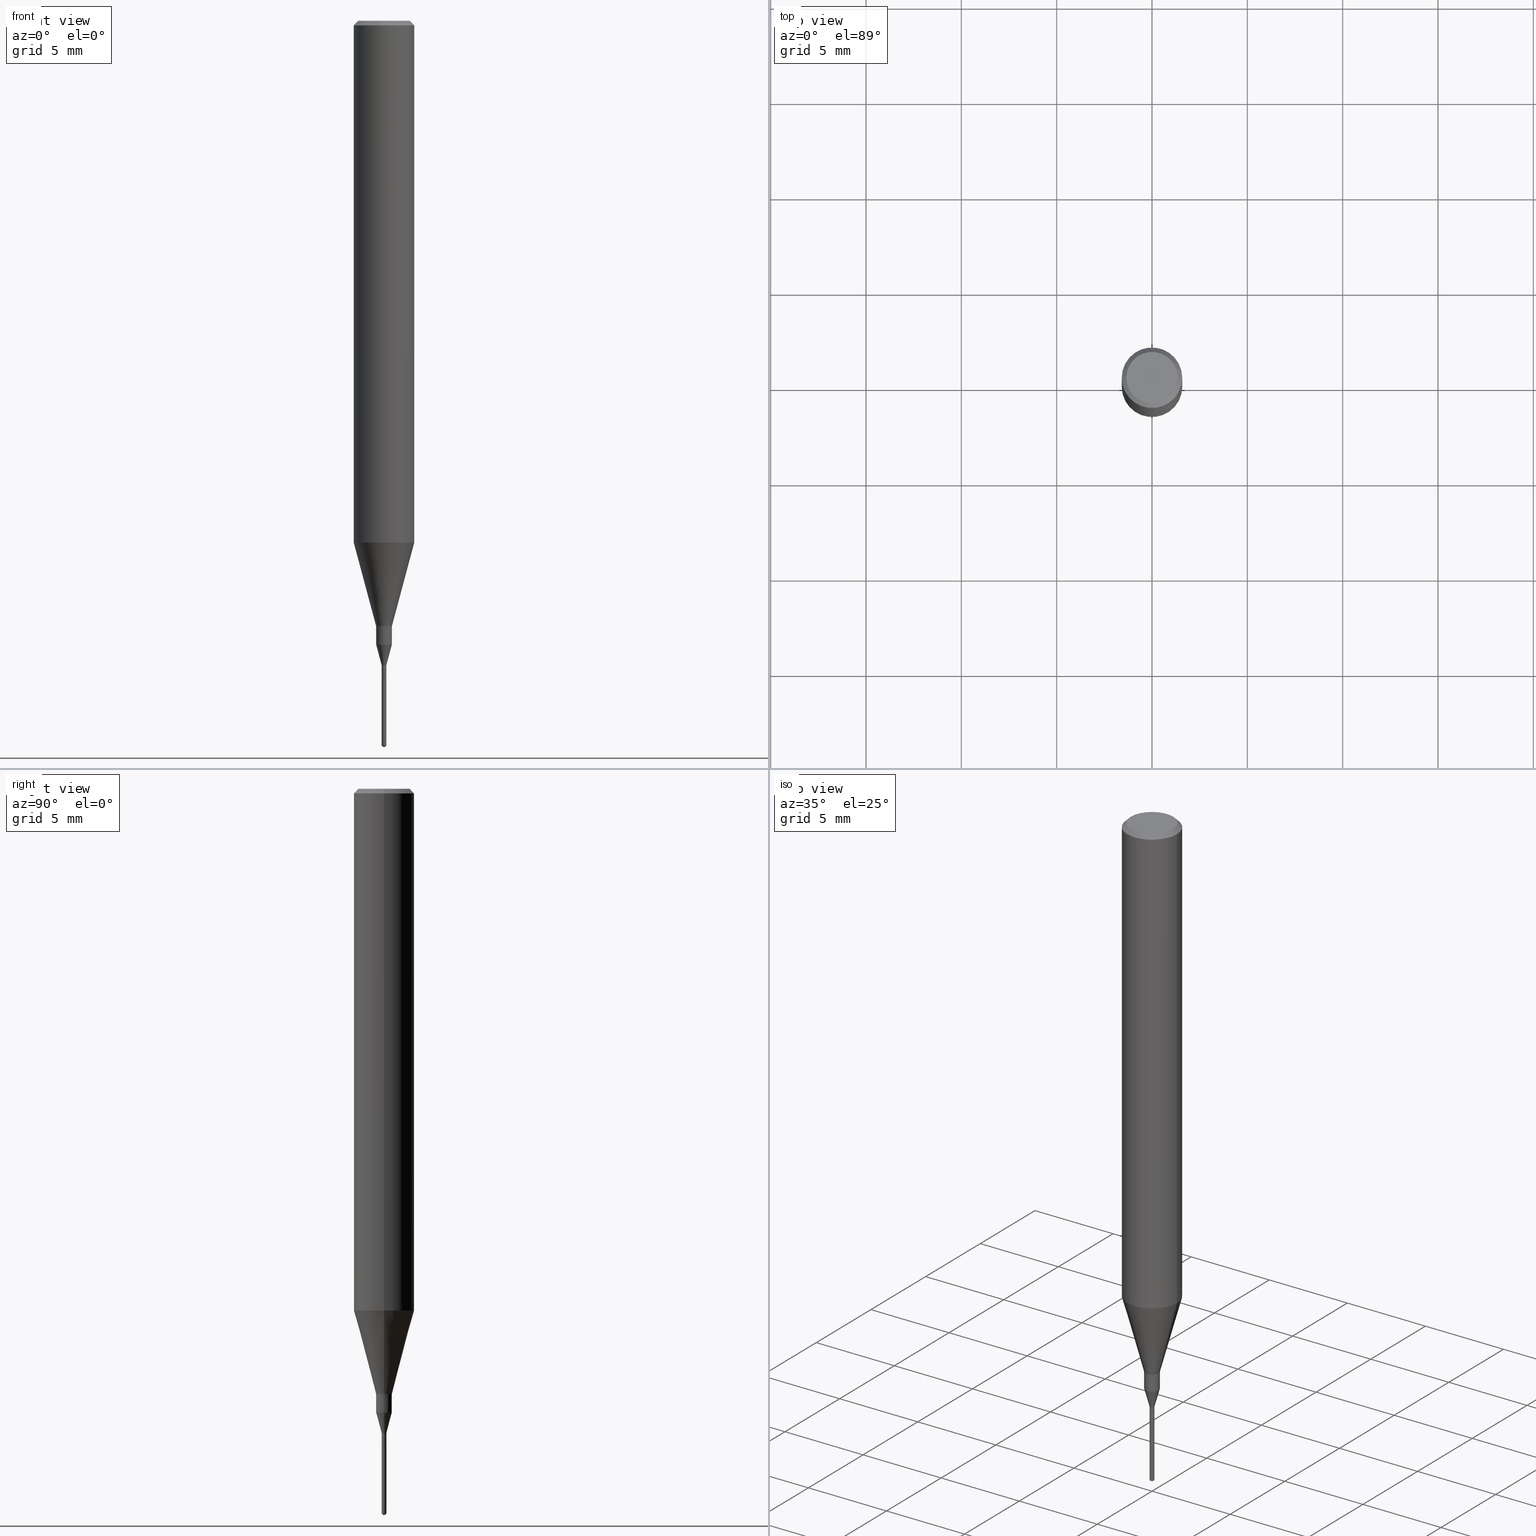
[diagram: canonical four-view strip — front | top / right | iso, engineering-drawing reading convention]
A machine part, canonical four-view strip (front | top / right | iso — engineering-drawing reading convention). The complete STEP part file that produces these views, byte-faithful:
ISO-10303-21;
HEADER;
FILE_DESCRIPTION (( 'STEP AP203' ),
    '1' );
FILE_NAME ('07108.STEP',
    '2024-04-19T13:30:03',
    ( '' ),
    ( '' ),
    'SwSTEP 2.0',
    'SolidWorks 2023',
    '' );
FILE_SCHEMA (( 'CONFIG_CONTROL_DESIGN' ));
ENDSEC;

DATA;
#1 = DIRECTION ( 'NONE',  ( -2.449828643397946418E-29, 3.485237803807878340E-15, 1.000000000000000000 ) ) ;
#2 = CARTESIAN_POINT ( 'NONE',  ( -0.004900000000000038873, 3.481659405224518532E-17, -2.410278194224922973E-31 ) ) ;
#3 = LINE ( 'NONE', #365, #521 ) ;
#4 =( GEOMETRIC_REPRESENTATION_CONTEXT ( 3 ) GLOBAL_UNCERTAINTY_ASSIGNED_CONTEXT ( ( #248 ) ) GLOBAL_UNIT_ASSIGNED_CONTEXT ( ( #324, #149, #186 ) ) REPRESENTATION_CONTEXT ( 'NONE', 'WORKASPACE' ) );
#5 = CARTESIAN_POINT ( 'NONE',  ( 0.05312499999999999861, -4.129888592719939842E-16, -5.787680772767651417E-18 ) ) ;
#6 = ORIENTED_EDGE ( 'NONE', *, *, #439, .T. ) ;
#7 = DIRECTION ( 'NONE',  ( 0.000000000000000000, 0.000000000000000000, 1.000000000000000000 ) ) ;
#8 = AXIS2_PLACEMENT_3D ( 'NONE', #318, #89, #540 ) ;
#9 = CONICAL_SURFACE ( 'NONE', #340, 0.06250000000000012490, 0.2617993877991501295 ) ;
#10 = DIRECTION ( 'NONE',  ( 1.000000000000000000, 0.000000000000000000, 0.000000000000000000 ) ) ;
#11 = EDGE_CURVE ( 'NONE', #392, #486, #62, .T. ) ;
#12 = EDGE_LOOP ( 'NONE', ( #348, #505, #412 ) ) ;
#13 = PERSON_AND_ORGANIZATION_ROLE ( 'design_owner' ) ;
#14 = AXIS2_PLACEMENT_3D ( 'NONE', #544, #500, #86 ) ;
#15 = CARTESIAN_POINT ( 'NONE',  ( 7.076796394983739835E-47, -1.010378970665454992E-32, -2.893840386385196200E-18 ) ) ;
#16 = DIRECTION ( 'NONE',  ( -2.445468806185136597E-29, 3.491481338843145583E-15, 1.000000000000000000 ) ) ;
#17 = PRODUCT_DEFINITION_SHAPE ( 'NONE', 'NONE',  #137 ) ;
#18 = DIRECTION ( 'NONE',  ( -2.445468806185136597E-29, 3.491481338843145583E-15, 1.000000000000000000 ) ) ;
#19 = CARTESIAN_POINT ( 'NONE',  ( 3.301382888349935078E-29, -4.713499807438246596E-15, -1.350000000000000089 ) ) ;
#20 = PERSON ( 'UNSPECIFIED', 'UNSPECIFIED', 'UNSPECIFIED', ('UNSPECIFIED'), ('UNSPECIFIED'), ('UNSPECIFIED') ) ;
#21 = DIRECTION ( 'NONE',  ( -2.445468806185136877E-29, 3.491481338843145188E-15, 1.000000000000000000 ) ) ;
#22 = DIRECTION ( 'NONE',  ( -2.445468806185136597E-29, 3.491481338843145583E-15, 1.000000000000000000 ) ) ;
#23 = ADVANCED_FACE ( 'NONE', ( #423 ), #379, .F. ) ;
#24 = AXIS2_PLACEMENT_3D ( 'NONE', #362, #99, #190 ) ;
#25 = DIRECTION ( 'NONE',  ( -2.449828643397946418E-29, 3.485237803807878340E-15, 1.000000000000000000 ) ) ;
#26 = ORIENTED_EDGE ( 'NONE', *, *, #316, .F. ) ;
#27 = DIRECTION ( 'NONE',  ( 1.000000000000000000, -6.982962677686288799E-15, 0.000000000000000000 ) ) ;
#28 = DATE_AND_TIME ( #587, #106 ) ;
#29 = CARTESIAN_POINT ( 'NONE',  ( 0.01625000000000000056, -4.610645038444085651E-15, -1.288041223334093432 ) ) ;
#30 = ORIENTED_EDGE ( 'NONE', *, *, #307, .T. ) ;
#31 = PERSON_AND_ORGANIZATION ( #20, #41 ) ;
#32 = LINE ( 'NONE', #481, #79 ) ;
#33 = ORIENTED_EDGE ( 'NONE', *, *, #542, .F. ) ;
#34 = DIRECTION ( 'NONE',  ( -2.445468806185136597E-29, 3.491481338843145583E-15, 1.000000000000000000 ) ) ;
#35 = ADVANCED_FACE ( 'NONE', ( #59 ), #515, .F. ) ;
#36 = ADVANCED_FACE ( 'NONE', ( #571 ), #69, .T. ) ;
#37 = ORIENTED_EDGE ( 'NONE', *, *, #416, .F. ) ;
#38 = AXIS2_PLACEMENT_3D ( 'NONE', #135, #507, #454 ) ;
#39 = VERTEX_POINT ( 'NONE', #568 ) ;
#40 = CARTESIAN_POINT ( 'NONE',  ( -0.01624999999999999709, 1.154631945610162595E-16, -7.993269521664220284E-31 ) ) ;
#41 = ORGANIZATION ( 'UNSPECIFIED', 'UNSPECIFIED', '' ) ;
#42 = APPROVAL_DATE_TIME ( #217, #525 ) ;
#43 = DIRECTION ( 'NONE',  ( 0.7071067811868232411, -2.468850131085145080E-15, 0.7071067811862716823 ) ) ;
#44 = CIRCLE ( 'NONE', #71, 0.004899999999999999842 ) ;
#45 = EDGE_CURVE ( 'NONE', #462, #153, #221, .T. ) ;
#46 = CARTESIAN_POINT ( 'NONE',  ( 3.662971404622334007E-29, -5.244714250307038079E-15, -1.500000000000000222 ) ) ;
#47 = AXIS2_PLACEMENT_3D ( 'NONE', #330, #564, #184 ) ;
#48 = DIRECTION ( 'NONE',  ( -5.985567269336014644E-15, -0.8571673007021206603, 0.5150380749100403888 ) ) ;
#49 = AXIS2_PLACEMENT_3D ( 'NONE', #562, #514, #464 ) ;
#50 = FACE_OUTER_BOUND ( 'NONE', #580, .T. ) ;
#51 = VECTOR ( 'NONE', #524, 39.37007874015748143 ) ;
#52 = ORIENTED_EDGE ( 'NONE', *, *, #475, .F. ) ;
#53 = LENGTH_MEASURE_WITH_UNIT ( LENGTH_MEASURE( 0.02539999999999999897 ), #107 );
#54 = EDGE_CURVE ( 'NONE', #486, #443, #268, .T. ) ;
#55 = CARTESIAN_POINT ( 'NONE',  ( -0.06250000000000012490, -3.317607122755211895E-15, -1.077392650149939346 ) ) ;
#56 = ADVANCED_FACE ( 'NONE', ( #479 ), #250, .T. ) ;
#57 = DIRECTION ( 'NONE',  ( -2.445468806185136877E-29, 3.491481338843145188E-15, 1.000000000000000000 ) ) ;
#58 = CARTESIAN_POINT ( 'NONE',  ( 0.06250000000000006939, -4.364351673553921624E-16, 3.047610484872463374E-30 ) ) ;
#59 = FACE_OUTER_BOUND ( 'NONE', #558, .T. ) ;
#60 = DIRECTION ( 'NONE',  ( 0.2588190451025214611, 1.565188264969621573E-15, 0.9659258262890682012 ) ) ;
#61 = DATE_AND_TIME ( #535, #271 ) ;
#62 = LINE ( 'NONE', #246, #104 ) ;
#63 = VECTOR ( 'NONE', #1, 39.37007874015748143 ) ;
#64 = DIRECTION ( 'NONE',  ( 1.000000000000000000, -6.982962677686267499E-15, 4.876176775795936353E-29 ) ) ;
#65 = LOCAL_TIME ( 9, 30, 3.000000000000000000, #82 ) ;
#66 = DIRECTION ( 'NONE',  ( 1.000000000000000000, -6.982962677686303787E-15, 0.000000000000000000 ) ) ;
#67 = PRODUCT_DEFINITION_FORMATION_WITH_SPECIFIED_SOURCE ( 'ANY', '', #382, .NOT_KNOWN. ) ;
#68 = VECTOR ( 'NONE', #335, 39.37007874015748143 ) ;
#69 = CYLINDRICAL_SURFACE ( 'NONE', #380, 0.004900000000000038873 ) ;
#70 = DIRECTION ( 'NONE',  ( 1.000000000000000000, -6.982962677686258033E-15, 0.000000000000000000 ) ) ;
#71 = AXIS2_PLACEMENT_3D ( 'NONE', #355, #455, #232 ) ;
#72 = DIRECTION ( 'NONE',  ( -2.445468806185136597E-29, 3.491481338843145583E-15, 1.000000000000000000 ) ) ;
#73 = VERTEX_POINT ( 'NONE', #483 ) ;
#74 = CALENDAR_DATE ( 2024, 19, 4 ) ;
#75 = AXIS2_PLACEMENT_3D ( 'NONE', #563, #151, #469 ) ;
#76 = DIRECTION ( 'NONE',  ( -2.445468806185136597E-29, 3.491481338843145583E-15, 1.000000000000000000 ) ) ;
#77 = CC_DESIGN_PERSON_AND_ORGANIZATION_ASSIGNMENT ( #31, #393, ( #137 ) ) ;
#78 = DIRECTION ( 'NONE',  ( 1.000000000000000000, -6.982962677686266711E-15, 4.876176775795935793E-29 ) ) ;
#79 = VECTOR ( 'NONE', #249, 39.37007874015748143 ) ;
#80 = ORIENTED_EDGE ( 'NONE', *, *, #98, .F. ) ;
#81 = ORIENTED_EDGE ( 'NONE', *, *, #363, .T. ) ;
#82 = COORDINATED_UNIVERSAL_TIME_OFFSET ( 5, 0, .BEHIND. ) ;
#83 = ORIENTED_EDGE ( 'NONE', *, *, #309, .F. ) ;
#84 = EDGE_LOOP ( 'NONE', ( #81, #165 ) ) ;
#85 = CARTESIAN_POINT ( 'NONE',  ( 2.634730117954813298E-29, -3.761696332605275695E-15, -1.077392650149939346 ) ) ;
#86 = DIRECTION ( 'NONE',  ( 1.000000000000000000, -6.982962677686266711E-15, 4.876176775795935793E-29 ) ) ;
#87 = ADVANCED_FACE ( 'NONE', ( #108 ), #252, .T. ) ;
#88 = DIRECTION ( 'NONE',  ( -2.445468806185136877E-29, 3.491481338843145188E-15, 1.000000000000000000 ) ) ;
#89 = DIRECTION ( 'NONE',  ( -2.445468806185136597E-29, 3.491481338843145583E-15, 1.000000000000000000 ) ) ;
#90 = ORIENTED_EDGE ( 'NONE', *, *, #148, .T. ) ;
#91 = EDGE_LOOP ( 'NONE', ( #33, #447, #311, #26 ) ) ;
#92 = CARTESIAN_POINT ( 'NONE',  ( 0.01624999999999999709, -4.477824817066334148E-15, -1.250000000000000000 ) ) ;
#93 = CARTESIAN_POINT ( 'NONE',  ( 0.004399999999999999398, -4.744224843220065847E-15, -1.350000000000000089 ) ) ;
#94 = VECTOR ( 'NONE', #60, 39.37007874015747433 ) ;
#95 = ORIENTED_EDGE ( 'NONE', *, *, #373, .F. ) ;
#96 = ORIENTED_EDGE ( 'NONE', *, *, #416, .T. ) ;
#97 = APPROVAL_PERSON_ORGANIZATION ( #325, #266, #378 ) ;
#98 = EDGE_CURVE ( 'NONE', #153, #445, #430, .T. ) ;
#99 = DIRECTION ( 'NONE',  ( -2.445468806185136597E-29, 3.491481338843145583E-15, 1.000000000000000000 ) ) ;
#100 = ADVANCED_FACE ( 'NONE', ( #388 ), #449, .T. ) ;
#101 = ORIENTED_EDGE ( 'NONE', *, *, #141, .F. ) ;
#102 = MANIFOLD_SOLID_BREP ( 'Body-Move/Copy2[1]', #351 ) ;
#103 = DIRECTION ( 'NONE',  ( -2.445468806185136597E-29, 3.491481338843145583E-15, 1.000000000000000000 ) ) ;
#104 = VECTOR ( 'NONE', #21, 39.37007874015748143 ) ;
#105 = EDGE_CURVE ( 'NONE', #153, #462, #513, .T. ) ;
#106 = LOCAL_TIME ( 9, 30, 3.000000000000000000, #345 ) ;
#107 =( LENGTH_UNIT ( ) NAMED_UNIT ( * ) SI_UNIT ( $, .METRE. ) );
#108 = FACE_OUTER_BOUND ( 'NONE', #554, .T. ) ;
#109 = VECTOR ( 'NONE', #350, 39.37007874015748143 ) ;
#110 = CIRCLE ( 'NONE', #386, 0.06250000000000012490 ) ;
#111 = ORIENTED_EDGE ( 'NONE', *, *, #414, .F. ) ;
#112 = CARTESIAN_POINT ( 'NONE',  ( 2.292627005798580186E-31, -3.273263755165470184E-17, -0.009375000000000060368 ) ) ;
#113 = CARTESIAN_POINT ( 'NONE',  ( -9.278108940561071411E-28, 1.319778012860802633E-13, 37.87007874015748143 ) ) ;
#114 = DIRECTION ( 'NONE',  ( 1.000000000000000000, -6.982962677686266711E-15, 0.000000000000000000 ) ) ;
#115 = DIRECTION ( 'NONE',  ( -2.445468806185136597E-29, 3.491481338843145583E-15, 1.000000000000000000 ) ) ;
#116 = ADVANCED_FACE ( 'NONE', ( #337 ), #140, .T. ) ;
#117 = DESIGN_CONTEXT ( 'detailed design', #344, 'design' ) ;
#118 = LINE ( 'NONE', #537, #51 ) ;
#119 = VERTEX_POINT ( 'NONE', #228 ) ;
#120 = COORDINATED_UNIVERSAL_TIME_OFFSET ( 5, 0, .BEHIND. ) ;
#121 = CC_DESIGN_DATE_AND_TIME_ASSIGNMENT ( #61, #490, ( #329 ) ) ;
#122 = LINE ( 'NONE', #197, #109 ) ;
#123 = ORIENTED_EDGE ( 'NONE', *, *, #414, .T. ) ;
#124 = AXIS2_PLACEMENT_3D ( 'NONE', #333, #196, #520 ) ;
#125 = EDGE_LOOP ( 'NONE', ( #493, #354, #583, #264 ) ) ;
#126 = DIRECTION ( 'NONE',  ( 1.000000000000000000, -6.982962677686289588E-15, 0.000000000000000000 ) ) ;
#127 = VERTEX_POINT ( 'NONE', #456 ) ;
#128 = CARTESIAN_POINT ( 'NONE',  ( 2.634730117954813298E-29, -3.761696332605275695E-15, -1.077392650149939346 ) ) ;
#129 = EDGE_LOOP ( 'NONE', ( #90, #532, #463, #101 ) ) ;
#130 = DIRECTION ( 'NONE',  ( 1.000000000000000000, -6.982962677686258033E-15, 0.000000000000000000 ) ) ;
#131 = ADVANCED_FACE ( 'NONE', ( #543 ), #231, .T. ) ;
#132 = CARTESIAN_POINT ( 'NONE',  ( 0.01625000000000000056, -4.610645038444085651E-15, -1.288041223334093432 ) ) ;
#133 = AXIS2_PLACEMENT_3D ( 'NONE', #175, #497, #360 ) ;
#134 = FACE_OUTER_BOUND ( 'NONE', #349, .T. ) ;
#135 = CARTESIAN_POINT ( 'NONE',  ( 3.661644357639227477E-29, -5.226024181502583306E-15, -1.497055782966765225 ) ) ;
#136 = FACE_OUTER_BOUND ( 'NONE', #538, .T. ) ;
#137 = PRODUCT_DEFINITION ( 'UNKNOWN', '', #67, #117 ) ;
#138 = ORIENTED_EDGE ( 'NONE', *, *, #200, .T. ) ;
#139 = DIRECTION ( 'NONE',  ( 1.000000000000000000, -6.982962677686266711E-15, 4.876176775795935793E-29 ) ) ;
#140 = CONICAL_SURFACE ( 'NONE', #556, 0.06250000000000000000, 0.7853981633974456145 ) ;
#141 = EDGE_CURVE ( 'NONE', #498, #279, #552, .T. ) ;
#142 = ORIENTED_EDGE ( 'NONE', *, *, #567, .F. ) ;
#143 = LINE ( 'NONE', #55, #187 ) ;
#144 = DIRECTION ( 'NONE',  ( -2.445468806185136597E-29, 3.491481338843145583E-15, 1.000000000000000000 ) ) ;
#145 = VECTOR ( 'NONE', #522, 39.37007874015748854 ) ;
#146 = VECTOR ( 'NONE', #270, 39.37007874015748143 ) ;
#147 = APPLICATION_PROTOCOL_DEFINITION ( 'international standard', 'config_control_design', 1994, #212 ) ;
#148 = EDGE_CURVE ( 'NONE', #498, #459, #292, .T. ) ;
#149 =( NAMED_UNIT ( * ) PLANE_ANGLE_UNIT ( ) SI_UNIT ( $, .RADIAN. ) );
#150 = AXIS2_PLACEMENT_3D ( 'NONE', #201, #243, #64 ) ;
#151 = DIRECTION ( 'NONE',  ( 2.449828643397946138E-29, -3.485237803807878340E-15, -1.000000000000000000 ) ) ;
#152 = CARTESIAN_POINT ( 'NONE',  ( 0.000000000000000000, 0.000000000000000000, 0.000000000000000000 ) ) ;
#153 = VERTEX_POINT ( 'NONE', #92 ) ;
#154 = CIRCLE ( 'NONE', #494, 0.01625000000000000056 ) ;
#155 = DIRECTION ( 'NONE',  ( -2.445468806185136597E-29, 3.491481338843145583E-15, 1.000000000000000000 ) ) ;
#156 = CC_DESIGN_DATE_AND_TIME_ASSIGNMENT ( #28, #287, ( #137 ) ) ;
#157 = DIRECTION ( 'NONE',  ( -1.000000000000000000, 6.982962677686265922E-15, -4.876176775795935793E-29 ) ) ;
#158 = FACE_OUTER_BOUND ( 'NONE', #12, .T. ) ;
#159 = EDGE_CURVE ( 'NONE', #368, #459, #410, .T. ) ;
#160 = LINE ( 'NONE', #391, #145 ) ;
#161 = ORIENTED_EDGE ( 'NONE', *, *, #45, .F. ) ;
#162 = PERSON_AND_ORGANIZATION ( #20, #41 ) ;
#163 = CARTESIAN_POINT ( 'NONE',  ( 2.292627005798580186E-31, -3.273263755165470184E-17, -0.009375000000000060368 ) ) ;
#164 = EDGE_CURVE ( 'NONE', #462, #392, #143, .T. ) ;
#165 = ORIENTED_EDGE ( 'NONE', *, *, #567, .T. ) ;
#166 = ORIENTED_EDGE ( 'NONE', *, *, #519, .F. ) ;
#167 = VERTEX_POINT ( 'NONE', #178 ) ;
#168 = ORIENTED_EDGE ( 'NONE', *, *, #239, .F. ) ;
#169 = DIRECTION ( 'NONE',  ( 0.7071067811865454633, -7.319954787623246579E-15, -0.7071067811865493491 ) ) ;
#170 = ORIENTED_EDGE ( 'NONE', *, *, #529, .F. ) ;
#171 = DIRECTION ( 'NONE',  ( -2.445468806185136597E-29, 3.491481338843145583E-15, 1.000000000000000000 ) ) ;
#172 = ORIENTED_EDGE ( 'NONE', *, *, #225, .T. ) ;
#173 = EDGE_LOOP ( 'NONE', ( #37, #30, #6, #575 ) ) ;
#174 = ORIENTED_EDGE ( 'NONE', *, *, #373, .T. ) ;
#175 = CARTESIAN_POINT ( 'NONE',  ( 3.149864632744068041E-29, -4.497171894931683975E-15, -1.288041223334093432 ) ) ;
#176 = SHAPE_DEFINITION_REPRESENTATION ( #17, #211 ) ;
#177 = DIRECTION ( 'NONE',  ( 1.000000000000000000, -6.982962677686264344E-15, 0.000000000000000000 ) ) ;
#178 = CARTESIAN_POINT ( 'NONE',  ( 0.004399999999999999398, -4.744224843220065847E-15, -1.350000000000000089 ) ) ;
#179 = CARTESIAN_POINT ( 'NONE',  ( 0.06250000000000012490, -4.198131499960668153E-15, -1.077392650149939346 ) ) ;
#180 = DIRECTION ( 'NONE',  ( 6.090539988449850222E-15, 0.8571673007021241020, 0.5150380749100342825 ) ) ;
#181 = LINE ( 'NONE', #2, #146 ) ;
#182 = ADVANCED_FACE ( 'NONE', ( #261 ), #574, .T. ) ;
#183 = ORIENTED_EDGE ( 'NONE', *, *, #475, .T. ) ;
#184 = DIRECTION ( 'NONE',  ( 1.000000000000000000, -6.982962677686266711E-15, 4.875930095424100059E-29 ) ) ;
#185 = ORIENTED_EDGE ( 'NONE', *, *, #105, .F. ) ;
#186 =( NAMED_UNIT ( * ) SI_UNIT ( $, .STERADIAN. ) SOLID_ANGLE_UNIT ( ) );
#187 = VECTOR ( 'NONE', #541, 39.37007874015747433 ) ;
#188 = LOCAL_TIME ( 9, 30, 3.000000000000000000, #438 ) ;
#189 = EDGE_CURVE ( 'NONE', #400, #153, #32, .T. ) ;
#190 = DIRECTION ( 'NONE',  ( 1.000000000000000000, -6.982962677686289588E-15, 0.000000000000000000 ) ) ;
#191 = AXIS2_PLACEMENT_3D ( 'NONE', #202, #76, #436 ) ;
#192 = ORIENTED_EDGE ( 'NONE', *, *, #526, .T. ) ;
#193 = CONICAL_SURFACE ( 'NONE', #298, 0.01625000000000000056, 0.2617993877991485197 ) ;
#194 = APPROVAL_STATUS ( 'not_yet_approved' ) ;
#195 = ORIENTED_EDGE ( 'NONE', *, *, #198, .F. ) ;
#196 = DIRECTION ( 'NONE',  ( -2.445468806185136597E-29, 3.491481338843145583E-15, 1.000000000000000000 ) ) ;
#197 = CARTESIAN_POINT ( 'NONE',  ( -0.01625000000000000056, -4.381708700370667790E-15, -1.288041223334093432 ) ) ;
#198 = EDGE_CURVE ( 'NONE', #395, #443, #339, .T. ) ;
#199 = AXIS2_PLACEMENT_3D ( 'NONE', #19, #22, #126 ) ;
#200 = EDGE_CURVE ( 'NONE', #347, #496, #122, .T. ) ;
#201 = CARTESIAN_POINT ( 'NONE',  ( 0.000000000000000000, 0.000000000000000000, 0.000000000000000000 ) ) ;
#202 = CARTESIAN_POINT ( 'NONE',  ( 0.000000000000000000, 0.000000000000000000, 0.000000000000000000 ) ) ;
#203 = DIRECTION ( 'NONE',  ( -2.449828643397946418E-29, 3.485237803807878340E-15, 1.000000000000000000 ) ) ;
#204 = CARTESIAN_POINT ( 'NONE',  ( 3.300160153946842837E-29, -4.711754066768825881E-15, -1.349500000000000366 ) ) ;
#205 = ORIENTED_EDGE ( 'NONE', *, *, #530, .T. ) ;
#206 = CARTESIAN_POINT ( 'NONE',  ( 2.292627005798580186E-31, -3.273263755165470184E-17, -0.009375000000000060368 ) ) ;
#207 = PERSON_AND_ORGANIZATION ( #20, #41 ) ;
#208 = EDGE_CURVE ( 'NONE', #443, #486, #442, .T. ) ;
#209 = CARTESIAN_POINT ( 'NONE',  ( -0.004900000000000062292, -4.643593825930628961E-15, -1.330400000000000027 ) ) ;
#210 = PERSON_AND_ORGANIZATION_ROLE ( 'creator' ) ;
#211 = ADVANCED_BREP_SHAPE_REPRESENTATION ( '07108', ( #102, #293, #477 ), #4 ) ;
#212 = APPLICATION_CONTEXT ( 'configuration controlled 3d designs of mechanical parts and assemblies' ) ;
#213 = ORIENTED_EDGE ( 'NONE', *, *, #307, .F. ) ;
#214 = EDGE_LOOP ( 'NONE', ( #172, #357, #185, #305 ) ) ;
#215 = CARTESIAN_POINT ( 'NONE',  ( 3.253451699748706005E-29, -4.645066773196920500E-15, -1.330400000000000027 ) ) ;
#216 = CC_DESIGN_PERSON_AND_ORGANIZATION_ASSIGNMENT ( #450, #531, ( #67 ) ) ;
#217 = DATE_AND_TIME ( #401, #374 ) ;
#218 = DIRECTION ( 'NONE',  ( 1.000000000000000000, -6.982962677686266711E-15, 4.875930095424100059E-29 ) ) ;
#219 = ORIENTED_EDGE ( 'NONE', *, *, #244, .T. ) ;
#220 = APPROVAL_ROLE ( '' ) ;
#221 = CIRCLE ( 'NONE', #124, 0.01624999999999999709 ) ;
#222 = EDGE_LOOP ( 'NONE', ( #219, #205, #262, #356 ) ) ;
#223 = FACE_OUTER_BOUND ( 'NONE', #536, .T. ) ;
#224 = PERSON_AND_ORGANIZATION ( #20, #41 ) ;
#225 = EDGE_CURVE ( 'NONE', #400, #496, #154, .T. ) ;
#226 = CARTESIAN_POINT ( 'NONE',  ( -0.01624999999999999709, -4.315298589681791643E-15, -1.250000000000000000 ) ) ;
#227 = AXIS2_PLACEMENT_3D ( 'NONE', #504, #503, #411 ) ;
#228 = CARTESIAN_POINT ( 'NONE',  ( 3.481659405228152839E-17, 0.004899999999995285731, -1.350000000000000089 ) ) ;
#229 = LINE ( 'NONE', #46, #272 ) ;
#230 = CLOSED_SHELL ( 'NONE', ( #116, #182, #461, #56, #422, #523, #328, #589, #100, #36, #353, #275, #466, #550, #586, #35 ) ) ;
#231 = CYLINDRICAL_SURFACE ( 'NONE', #473, 0.004899999999999998107 ) ;
#232 = DIRECTION ( 'NONE',  ( -6.982962677686265922E-15, -1.000000000000000000, 0.000000000000000000 ) ) ;
#233 = AXIS2_PLACEMENT_3D ( 'NONE', #322, #144, #377 ) ;
#234 = AXIS2_PLACEMENT_3D ( 'NONE', #204, #155, #251 ) ;
#235 = MECHANICAL_CONTEXT ( 'NONE', #212, 'mechanical' ) ;
#236 = CIRCLE ( 'NONE', #199, 0.004399999999999999398 ) ;
#237 = ORIENTED_EDGE ( 'NONE', *, *, #159, .F. ) ;
#238 = FACE_OUTER_BOUND ( 'NONE', #332, .T. ) ;
#239 = EDGE_CURVE ( 'NONE', #459, #119, #118, .T. ) ;
#240 = AXIS2_PLACEMENT_3D ( 'NONE', #396, #302, #78 ) ;
#241 = CARTESIAN_POINT ( 'NONE',  ( 3.301382888349935078E-29, -4.713499807438246596E-15, -1.350000000000000089 ) ) ;
#242 = COORDINATED_UNIVERSAL_TIME_OFFSET ( 5, 0, .BEHIND. ) ;
#243 = DIRECTION ( 'NONE',  ( -2.445468806185136597E-29, 3.491481338843145583E-15, 1.000000000000000000 ) ) ;
#244 = EDGE_CURVE ( 'NONE', #167, #313, #236, .T. ) ;
#245 = AXIS2_PLACEMENT_3D ( 'NONE', #434, #573, #289 ) ;
#246 = CARTESIAN_POINT ( 'NONE',  ( -0.06250000000000006939, 4.440892098500631092E-16, -3.074334431409319267E-30 ) ) ;
#247 = EDGE_CURVE ( 'NONE', #347, #127, #569, .T. ) ;
#248 = UNCERTAINTY_MEASURE_WITH_UNIT (LENGTH_MEASURE( 1.000000000000000082E-05 ), #324, 'distance_accuracy_value', 'NONE');
#249 = DIRECTION ( 'NONE',  ( -2.445468806185136877E-29, 3.491481338843145188E-15, 1.000000000000000000 ) ) ;
#250 = CYLINDRICAL_SURFACE ( 'NONE', #150, 0.01624999999999999709 ) ;
#251 = DIRECTION ( 'NONE',  ( 1.000000000000000000, -6.982962677686172047E-15, 0.000000000000000000 ) ) ;
#252 = CYLINDRICAL_SURFACE ( 'NONE', #278, 0.004899999999999998107 ) ;
#253 = DIRECTION ( 'NONE',  ( 1.000000000000000000, -6.982962677686289588E-15, 0.000000000000000000 ) ) ;
#254 = ORIENTED_EDGE ( 'NONE', *, *, #519, .T. ) ;
#255 = DATE_AND_TIME ( #306, #65 ) ;
#256 = ORIENTED_EDGE ( 'NONE', *, *, #526, .F. ) ;
#257 = CIRCLE ( 'NONE', #418, 0.004899999999999999842 ) ;
#258 = EDGE_LOOP ( 'NONE', ( #415, #192, #581, #213 ) ) ;
#259 = DIRECTION ( 'NONE',  ( 1.000000000000000000, -6.982962677686266711E-15, 0.000000000000000000 ) ) ;
#260 = EDGE_LOOP ( 'NONE', ( #506, #256 ) ) ;
#261 = FACE_OUTER_BOUND ( 'NONE', #491, .T. ) ;
#262 = ORIENTED_EDGE ( 'NONE', *, *, #545, .F. ) ;
#263 = CONICAL_SURFACE ( 'NONE', #8, 0.06250000000000012490, 0.2617993877991501295 ) ;
#264 = ORIENTED_EDGE ( 'NONE', *, *, #431, .F. ) ;
#265 = CARTESIAN_POINT ( 'NONE',  ( -0.06250000000000000000, -1.453125275228401137E-15, -0.009375000000000060368 ) ) ;
#266 = APPROVAL ( #194, 'UNSPECIFIED' ) ;
#267 = CIRCLE ( 'NONE', #417, 0.05312499999999999861 ) ;
#268 = CIRCLE ( 'NONE', #341, 0.06250000000000000000 ) ;
#269 = EDGE_CURVE ( 'NONE', #459, #498, #428, .T. ) ;
#270 = DIRECTION ( 'NONE',  ( -2.445468806185136877E-29, 3.491481338843145188E-15, 1.000000000000000000 ) ) ;
#271 = LOCAL_TIME ( 9, 30, 3.000000000000000000, #120 ) ;
#272 = VECTOR ( 'NONE', #48, 39.37007874015748143 ) ;
#273 = DIRECTION ( 'NONE',  ( -2.449828643397946418E-29, 3.485237803807878340E-15, 1.000000000000000000 ) ) ;
#274 = DIRECTION ( 'NONE',  ( -2.445468806185136597E-29, 3.491481338843145583E-15, 1.000000000000000000 ) ) ;
#275 = ADVANCED_FACE ( 'NONE', ( #488 ), #492, .T. ) ;
#276 = DIRECTION ( 'NONE',  ( 1.000000000000000000, -6.982962677686258033E-15, 0.000000000000000000 ) ) ;
#277 = ORIENTED_EDGE ( 'NONE', *, *, #189, .T. ) ;
#278 = AXIS2_PLACEMENT_3D ( 'NONE', #286, #203, #518 ) ;
#279 = VERTEX_POINT ( 'NONE', #570 ) ;
#280 = CYLINDRICAL_SURFACE ( 'NONE', #502, 0.06250000000000006939 ) ;
#281 = AXIS2_PLACEMENT_3D ( 'NONE', #215, #115, #66 ) ;
#282 = VECTOR ( 'NONE', #465, 39.37007874015748854 ) ;
#283 = FACE_OUTER_BOUND ( 'NONE', #260, .T. ) ;
#284 = VECTOR ( 'NONE', #57, 39.37007874015748143 ) ;
#285 = VECTOR ( 'NONE', #169, 39.37007874015748854 ) ;
#286 = CARTESIAN_POINT ( 'NONE',  ( 3.301382888349935078E-29, -4.713499807438246596E-15, -1.350000000000000089 ) ) ;
#287 = DATE_TIME_ROLE ( 'creation_date' ) ;
#288 = ORIENTED_EDGE ( 'NONE', *, *, #542, .T. ) ;
#289 = DIRECTION ( 'NONE',  ( 1.000000000000000000, -6.982962677686289588E-15, 0.000000000000000000 ) ) ;
#290 = CARTESIAN_POINT ( 'NONE',  ( 0.000000000000000000, 0.000000000000000000, 0.000000000000000000 ) ) ;
#291 = DIRECTION ( 'NONE',  ( -2.449828643397946418E-29, 3.485237803807878340E-15, 1.000000000000000000 ) ) ;
#292 = CIRCLE ( 'NONE', #38, 0.004899999999999998107 ) ;
#293 = MANIFOLD_SOLID_BREP ( 'Body-Move/Copy2[2]', #230 ) ;
#294 = CIRCLE ( 'NONE', #233, 0.004900000000000015454 ) ;
#295 = VECTOR ( 'NONE', #452, 39.37007874015748143 ) ;
#296 = DIRECTION ( 'NONE',  ( -2.445468806185136597E-29, 3.491481338843145583E-15, 1.000000000000000000 ) ) ;
#297 = AXIS2_PLACEMENT_3D ( 'NONE', #113, #291, #387 ) ;
#298 = AXIS2_PLACEMENT_3D ( 'NONE', #533, #274, #130 ) ;
#299 = CARTESIAN_POINT ( 'NONE',  ( -0.004399999999999999398, -4.679586699890691274E-15, -1.350000000000000089 ) ) ;
#300 = APPROVAL_DATE_TIME ( #255, #460 ) ;
#301 = ORIENTED_EDGE ( 'NONE', *, *, #54, .T. ) ;
#302 = DIRECTION ( 'NONE',  ( -2.445468806185136597E-29, 3.491481338843145583E-15, 1.000000000000000000 ) ) ;
#303 = VERTEX_POINT ( 'NONE', #528 ) ;
#304 = DIRECTION ( 'NONE',  ( -6.982962677686265922E-15, -1.000000000000000000, 0.000000000000000000 ) ) ;
#305 = ORIENTED_EDGE ( 'NONE', *, *, #189, .F. ) ;
#306 = CALENDAR_DATE ( 2024, 19, 4 ) ;
#307 = EDGE_CURVE ( 'NONE', #73, #39, #331, .T. ) ;
#308 = DIRECTION ( 'NONE',  ( 1.000000000000000000, -6.982962677686264344E-15, 0.000000000000000000 ) ) ;
#309 = EDGE_CURVE ( 'NONE', #127, #400, #572, .T. ) ;
#310 = APPROVAL_ROLE ( '' ) ;
#311 = ORIENTED_EDGE ( 'NONE', *, *, #208, .T. ) ;
#312 = LINE ( 'NONE', #40, #295 ) ;
#313 = VERTEX_POINT ( 'NONE', #299 ) ;
#314 = CARTESIAN_POINT ( 'NONE',  ( 3.149864632744068041E-29, -4.497171894931683975E-15, -1.288041223334093432 ) ) ;
#315 = CC_DESIGN_APPROVAL ( #460, ( #67 ) ) ;
#316 = EDGE_CURVE ( 'NONE', #303, #486, #160, .T. ) ;
#317 = CARTESIAN_POINT ( 'NONE',  ( 3.674742965096920047E-29, -5.227856705711817904E-15, -1.500000000000000222 ) ) ;
#318 = CARTESIAN_POINT ( 'NONE',  ( 2.634730117954813298E-29, -3.761696332605275695E-15, -1.077392650149939346 ) ) ;
#319 = EDGE_LOOP ( 'NONE', ( #489, #96, #111, #433 ) ) ;
#320 = DIRECTION ( 'NONE',  ( 1.000000000000000000, -6.982962677686265922E-15, 4.876176775795935793E-29 ) ) ;
#321 = ADVANCED_FACE ( 'NONE', ( #389 ), #480, .T. ) ;
#322 = CARTESIAN_POINT ( 'NONE',  ( 3.300160153946842837E-29, -4.711754066768825881E-15, -1.349500000000000366 ) ) ;
#323 = ADVANCED_FACE ( 'NONE', ( #158 ), #376, .T. ) ;
#324 =( CONVERSION_BASED_UNIT ( 'INCH', #53 ) LENGTH_UNIT ( ) NAMED_UNIT ( #326 ) );
#325 = PERSON_AND_ORGANIZATION ( #20, #41 ) ;
#326 = DIMENSIONAL_EXPONENTS ( 1.000000000000000000, 0.000000000000000000, 0.000000000000000000, 0.000000000000000000, 0.000000000000000000, 0.000000000000000000, 0.000000000000000000 ) ;
#327 = ORIENTED_EDGE ( 'NONE', *, *, #54, .F. ) ;
#328 = ADVANCED_FACE ( 'NONE', ( #342 ), #343, .T. ) ;
#329 = SECURITY_CLASSIFICATION ( '', '', #577 ) ;
#330 = CARTESIAN_POINT ( 'NONE',  ( 1.415359278996747967E-46, -2.020757941330909984E-32, -5.787680772770392401E-18 ) ) ;
#331 = CIRCLE ( 'NONE', #234, 0.004900000000000015454 ) ;
#332 = EDGE_LOOP ( 'NONE', ( #585, #174, #375, #327 ) ) ;
#333 = CARTESIAN_POINT ( 'NONE',  ( 3.056836007731421306E-29, -4.364351673553932471E-15, -1.250000000000000000 ) ) ;
#334 = CC_DESIGN_PERSON_AND_ORGANIZATION_ASSIGNMENT ( #162, #471, ( #329 ) ) ;
#335 = DIRECTION ( 'NONE',  ( 0.2588190451025199068, 1.565188264969633603E-15, 0.9659258262890685343 ) ) ;
#336 = CIRCLE ( 'NONE', #24, 0.004399999999999999398 ) ;
#337 = FACE_OUTER_BOUND ( 'NONE', #91, .T. ) ;
#338 = DIRECTION ( 'NONE',  ( 1.000000000000000000, -6.982962677686266711E-15, 4.876176775795935793E-29 ) ) ;
#339 = LINE ( 'NONE', #385, #285 ) ;
#340 = AXIS2_PLACEMENT_3D ( 'NONE', #85, #408, #177 ) ;
#341 = AXIS2_PLACEMENT_3D ( 'NONE', #112, #474, #114 ) ;
#342 = FACE_OUTER_BOUND ( 'NONE', #222, .T. ) ;
#343 = CONICAL_SURFACE ( 'NONE', #560, 0.004399999999999999398, 0.7853981633978383003 ) ;
#344 = APPLICATION_CONTEXT ( 'configuration controlled 3d designs of mechanical parts and assemblies' ) ;
#345 = COORDINATED_UNIVERSAL_TIME_OFFSET ( 5, 0, .BEHIND. ) ;
#346 = CARTESIAN_POINT ( 'NONE',  ( 3.661644357639227477E-29, -5.226024181502583306E-15, -1.497055782966765225 ) ) ;
#347 = VERTEX_POINT ( 'NONE', #209 ) ;
#348 = ORIENTED_EDGE ( 'NONE', *, *, #429, .F. ) ;
#349 = EDGE_LOOP ( 'NONE', ( #437, #566, #402, #95 ) ) ;
#350 = DIRECTION ( 'NONE',  ( -0.2588190451025199068, 5.211531920934540787E-15, 0.9659258262890685343 ) ) ;
#351 = CLOSED_SHELL ( 'NONE', ( #131, #323, #321, #87, #23 ) ) ;
#352 = CC_DESIGN_PERSON_AND_ORGANIZATION_ASSIGNMENT ( #224, #210, ( #67 ) ) ;
#353 = ADVANCED_FACE ( 'NONE', ( #578 ), #193, .T. ) ;
#354 = ORIENTED_EDGE ( 'NONE', *, *, #247, .T. ) ;
#355 = CARTESIAN_POINT ( 'NONE',  ( 3.301382888349935078E-29, -4.713499807438246596E-15, -1.350000000000000089 ) ) ;
#356 = ORIENTED_EDGE ( 'NONE', *, *, #478, .F. ) ;
#357 = ORIENTED_EDGE ( 'NONE', *, *, #420, .T. ) ;
#358 = ORIENTED_EDGE ( 'NONE', *, *, #208, .F. ) ;
#359 = DIRECTION ( 'NONE',  ( 2.445468806185136597E-29, -3.491481338843145583E-15, -1.000000000000000000 ) ) ;
#360 = DIRECTION ( 'NONE',  ( 1.000000000000000000, -6.982962677686258033E-15, 0.000000000000000000 ) ) ;
#361 = DATE_AND_TIME ( #74, #188 ) ;
#362 = CARTESIAN_POINT ( 'NONE',  ( 3.301382888349935078E-29, -4.713499807438246596E-15, -1.350000000000000089 ) ) ;
#363 = EDGE_CURVE ( 'NONE', #279, #119, #44, .T. ) ;
#364 = CARTESIAN_POINT ( 'NONE',  ( -3.421651712062968132E-17, -0.004900000000004712218, -1.350000000000000089 ) ) ;
#365 = CARTESIAN_POINT ( 'NONE',  ( 0.004900000000000038873, -3.421651712066297988E-17, 2.389326620140027533E-31 ) ) ;
#366 = CARTESIAN_POINT ( 'NONE',  ( 3.301382888349935078E-29, -4.713499807438246596E-15, -1.350000000000000089 ) ) ;
#367 = CARTESIAN_POINT ( 'NONE',  ( 0.06250000000000000000, -4.691678049070463404E-16, -0.009375000000000060368 ) ) ;
#368 = VERTEX_POINT ( 'NONE', #317 ) ;
#369 = CARTESIAN_POINT ( 'NONE',  ( 3.301382888349935078E-29, -4.713499807438246596E-15, -1.350000000000000089 ) ) ;
#370 = CC_DESIGN_PERSON_AND_ORGANIZATION_ASSIGNMENT ( #421, #13, ( #382 ) ) ;
#371 = VECTOR ( 'NONE', #180, 39.37007874015748854 ) ;
#372 = LINE ( 'NONE', #557, #282 ) ;
#373 = EDGE_CURVE ( 'NONE', #392, #445, #453, .T. ) ;
#374 = LOCAL_TIME ( 9, 30, 3.000000000000000000, #242 ) ;
#375 = ORIENTED_EDGE ( 'NONE', *, *, #529, .T. ) ;
#376 = CONICAL_SURFACE ( 'NONE', #527, 65.52281426577134482, 1.029744258676674074 ) ;
#377 = DIRECTION ( 'NONE',  ( 1.000000000000000000, -6.982962677686172047E-15, 0.000000000000000000 ) ) ;
#378 = APPROVAL_ROLE ( '' ) ;
#379 = PLANE ( 'NONE',  #75 ) ;
#380 = AXIS2_PLACEMENT_3D ( 'NONE', #290, #18, #338 ) ;
#381 = LINE ( 'NONE', #58, #284 ) ;
#382 = PRODUCT ( '07108', '07108', '', ( #235 ) ) ;
#383 = CC_DESIGN_APPROVAL ( #266, ( #137 ) ) ;
#384 = CIRCLE ( 'NONE', #47, 0.05312499999999999861 ) ;
#385 = CARTESIAN_POINT ( 'NONE',  ( 0.06250000000000000000, -4.615137624123753937E-16, -0.009375000000000060368 ) ) ;
#386 = AXIS2_PLACEMENT_3D ( 'NONE', #128, #171, #308 ) ;
#387 = DIRECTION ( 'NONE',  ( -6.982962677686265133E-15, -1.000000000000000000, 3.468864327941439992E-15 ) ) ;
#388 = FACE_OUTER_BOUND ( 'NONE', #258, .T. ) ;
#389 = FACE_OUTER_BOUND ( 'NONE', #404, .T. ) ;
#390 = APPROVAL_STATUS ( 'not_yet_approved' ) ;
#391 = CARTESIAN_POINT ( 'NONE',  ( -0.06250000000000000000, 4.037025298037369984E-16, -0.009375000000000060368 ) ) ;
#392 = VERTEX_POINT ( 'NONE', #546 ) ;
#393 = PERSON_AND_ORGANIZATION_ROLE ( 'creator' ) ;
#394 = ORIENTED_EDGE ( 'NONE', *, *, #420, .F. ) ;
#395 = VERTEX_POINT ( 'NONE', #5 ) ;
#396 = CARTESIAN_POINT ( 'NONE',  ( 0.000000000000000000, 0.000000000000000000, 0.000000000000000000 ) ) ;
#397 = AXIS2_PLACEMENT_3D ( 'NONE', #314, #409, #276 ) ;
#398 = ORIENTED_EDGE ( 'NONE', *, *, #164, .T. ) ;
#399 = DIRECTION ( 'NONE',  ( -2.445468806185136597E-29, 3.491481338843145583E-15, 1.000000000000000000 ) ) ;
#400 = VERTEX_POINT ( 'NONE', #132 ) ;
#401 = CALENDAR_DATE ( 2024, 19, 4 ) ;
#402 = ORIENTED_EDGE ( 'NONE', *, *, #98, .T. ) ;
#403 = APPROVAL_PERSON_ORGANIZATION ( #207, #460, #310 ) ;
#404 = EDGE_LOOP ( 'NONE', ( #237, #561, #534 ) ) ;
#405 = FACE_OUTER_BOUND ( 'NONE', #319, .T. ) ;
#406 = CIRCLE ( 'NONE', #227, 0.004900000000000062292 ) ;
#407 = DIRECTION ( 'NONE',  ( -6.982962677686265922E-15, -1.000000000000000000, 0.000000000000000000 ) ) ;
#408 = DIRECTION ( 'NONE',  ( -2.445468806185136597E-29, 3.491481338843145583E-15, 1.000000000000000000 ) ) ;
#409 = DIRECTION ( 'NONE',  ( -2.445468806185136597E-29, 3.491481338843145583E-15, 1.000000000000000000 ) ) ;
#410 = LINE ( 'NONE', #551, #371 ) ;
#411 = DIRECTION ( 'NONE',  ( 1.000000000000000000, -6.982962677686303787E-15, 0.000000000000000000 ) ) ;
#412 = ORIENTED_EDGE ( 'NONE', *, *, #148, .F. ) ;
#413 = AXIS2_PLACEMENT_3D ( 'NONE', #163, #441, #259 ) ;
#414 = EDGE_CURVE ( 'NONE', #127, #347, #406, .T. ) ;
#415 = ORIENTED_EDGE ( 'NONE', *, *, #530, .F. ) ;
#416 = EDGE_CURVE ( 'NONE', #73, #347, #181, .T. ) ;
#417 = AXIS2_PLACEMENT_3D ( 'NONE', #508, #34, #218 ) ;
#418 = AXIS2_PLACEMENT_3D ( 'NONE', #241, #510, #516 ) ;
#419 = CONICAL_SURFACE ( 'NONE', #133, 0.01625000000000000056, 0.2617993877991485197 ) ;
#420 = EDGE_CURVE ( 'NONE', #496, #462, #312, .T. ) ;
#421 = PERSON_AND_ORGANIZATION ( #20, #41 ) ;
#422 = ADVANCED_FACE ( 'NONE', ( #223 ), #419, .T. ) ;
#423 = FACE_OUTER_BOUND ( 'NONE', #84, .T. ) ;
#424 = AXIS2_PLACEMENT_3D ( 'NONE', #369, #555, #320 ) ;
#425 = CARTESIAN_POINT ( 'NONE',  ( 3.056836007731421306E-29, -4.364351673553932471E-15, -1.250000000000000000 ) ) ;
#426 = DIRECTION ( 'NONE',  ( 2.438088387897960049E-29, -3.491481338843145188E-15, -1.000000000000000000 ) ) ;
#427 = CARTESIAN_POINT ( 'NONE',  ( 3.149864632744068041E-29, -4.497171894931683975E-15, -1.288041223334093432 ) ) ;
#428 = CIRCLE ( 'NONE', #482, 0.004899999999999998107 ) ;
#429 = EDGE_CURVE ( 'NONE', #368, #498, #229, .T. ) ;
#430 = LINE ( 'NONE', #470, #94 ) ;
#431 = EDGE_CURVE ( 'NONE', #496, #400, #576, .T. ) ;
#432 = CARTESIAN_POINT ( 'NONE',  ( -9.278108940561071411E-28, 1.319778012860802633E-13, 37.87007874015748143 ) ) ;
#433 = ORIENTED_EDGE ( 'NONE', *, *, #439, .F. ) ;
#434 = CARTESIAN_POINT ( 'NONE',  ( 3.301382888349935078E-29, -4.713499807438246596E-15, -1.350000000000000089 ) ) ;
#435 = AXIS2_PLACEMENT_3D ( 'NONE', #15, #426, #157 ) ;
#436 = DIRECTION ( 'NONE',  ( 1.000000000000000000, -6.982962677686267499E-15, 4.876176775795936353E-29 ) ) ;
#437 = ORIENTED_EDGE ( 'NONE', *, *, #164, .F. ) ;
#438 = COORDINATED_UNIVERSAL_TIME_OFFSET ( 5, 0, .BEHIND. ) ;
#439 = EDGE_CURVE ( 'NONE', #39, #127, #3, .T. ) ;
#440 = ORIENTED_EDGE ( 'NONE', *, *, #141, .T. ) ;
#441 = DIRECTION ( 'NONE',  ( -2.445468806185136597E-29, 3.491481338843145583E-15, 1.000000000000000000 ) ) ;
#442 = CIRCLE ( 'NONE', #413, 0.06250000000000000000 ) ;
#443 = VERTEX_POINT ( 'NONE', #367 ) ;
#444 = CARTESIAN_POINT ( 'NONE',  ( -0.01625000000000000056, -4.381708700370667790E-15, -1.288041223334093432 ) ) ;
#445 = VERTEX_POINT ( 'NONE', #179 ) ;
#446 = ORIENTED_EDGE ( 'NONE', *, *, #105, .T. ) ;
#447 = ORIENTED_EDGE ( 'NONE', *, *, #198, .T. ) ;
#448 = CARTESIAN_POINT ( 'NONE',  ( 2.634730117954813298E-29, -3.761696332605275695E-15, -1.077392650149939346 ) ) ;
#449 = CONICAL_SURFACE ( 'NONE', #245, 0.004399999999999999398, 0.7853981633978383003 ) ;
#450 = PERSON_AND_ORGANIZATION ( #20, #41 ) ;
#451 = CC_DESIGN_SECURITY_CLASSIFICATION ( #329, ( #67 ) ) ;
#452 = DIRECTION ( 'NONE',  ( -2.445468806185136877E-29, 3.491481338843145188E-15, 1.000000000000000000 ) ) ;
#453 = CIRCLE ( 'NONE', #484, 0.06250000000000012490 ) ;
#454 = DIRECTION ( 'NONE',  ( -6.982962677686265922E-15, -1.000000000000000000, 0.000000000000000000 ) ) ;
#455 = DIRECTION ( 'NONE',  ( -2.449828643397946418E-29, 3.485237803807878340E-15, 1.000000000000000000 ) ) ;
#456 = CARTESIAN_POINT ( 'NONE',  ( 0.004900000000000062292, -4.679283290317584337E-15, -1.330400000000000027 ) ) ;
#457 = LINE ( 'NONE', #93, #501 ) ;
#458 = EDGE_LOOP ( 'NONE', ( #394, #467, #277, #161 ) ) ;
#459 = VERTEX_POINT ( 'NONE', #549 ) ;
#460 = APPROVAL ( #390, 'UNSPECIFIED' ) ;
#461 = ADVANCED_FACE ( 'NONE', ( #136 ), #263, .T. ) ;
#462 = VERTEX_POINT ( 'NONE', #226 ) ;
#463 = ORIENTED_EDGE ( 'NONE', *, *, #363, .F. ) ;
#464 = DIRECTION ( 'NONE',  ( -1.000000000000000000, 6.982962677686266711E-15, 0.000000000000000000 ) ) ;
#465 = DIRECTION ( 'NONE',  ( -0.7071067811868232411, 7.493145998871349703E-15, 0.7071067811862716823 ) ) ;
#466 = ADVANCED_FACE ( 'NONE', ( #134 ), #9, .T. ) ;
#467 = ORIENTED_EDGE ( 'NONE', *, *, #431, .T. ) ;
#468 = APPLICATION_PROTOCOL_DEFINITION ( 'international standard', 'config_control_design', 1994, #344 ) ;
#469 = DIRECTION ( 'NONE',  ( 6.982962677686265922E-15, 1.000000000000000000, -3.485237803807878340E-15 ) ) ;
#470 = CARTESIAN_POINT ( 'NONE',  ( 0.06250000000000012490, -4.198131499960668153E-15, -1.077392650149939346 ) ) ;
#471 = PERSON_AND_ORGANIZATION_ROLE ( 'classification_officer' ) ;
#472 = ORIENTED_EDGE ( 'NONE', *, *, #269, .T. ) ;
#473 = AXIS2_PLACEMENT_3D ( 'NONE', #366, #273, #407 ) ;
#474 = DIRECTION ( 'NONE',  ( -2.445468806185136597E-29, 3.491481338843145583E-15, 1.000000000000000000 ) ) ;
#475 = EDGE_CURVE ( 'NONE', #303, #395, #267, .T. ) ;
#476 = DIRECTION ( 'NONE',  ( -6.982962677686265133E-15, -1.000000000000000000, 3.468864327941439992E-15 ) ) ;
#477 = AXIS2_PLACEMENT_3D ( 'NONE', #152, #7, #10 ) ;
#478 = EDGE_CURVE ( 'NONE', #167, #39, #457, .T. ) ;
#479 = FACE_OUTER_BOUND ( 'NONE', #214, .T. ) ;
#480 = CONICAL_SURFACE ( 'NONE', #297, 65.52281426577134482, 1.029744258676674074 ) ;
#481 = CARTESIAN_POINT ( 'NONE',  ( 0.01624999999999999709, -1.134731435124018242E-16, 7.923787260668394963E-31 ) ) ;
#482 = AXIS2_PLACEMENT_3D ( 'NONE', #346, #582, #304 ) ;
#483 = CARTESIAN_POINT ( 'NONE',  ( -0.004900000000000015454, -4.676937472716581651E-15, -1.349500000000000366 ) ) ;
#484 = AXIS2_PLACEMENT_3D ( 'NONE', #448, #399, #553 ) ;
#485 = CARTESIAN_POINT ( 'NONE',  ( 3.301382888349935078E-29, -4.713499807438246596E-15, -1.350000000000000089 ) ) ;
#486 = VERTEX_POINT ( 'NONE', #265 ) ;
#487 = PERSON_AND_ORGANIZATION ( #20, #41 ) ;
#488 = FACE_OUTER_BOUND ( 'NONE', #458, .T. ) ;
#489 = ORIENTED_EDGE ( 'NONE', *, *, #545, .T. ) ;
#490 = DATE_TIME_ROLE ( 'classification_date' ) ;
#491 = EDGE_LOOP ( 'NONE', ( #254, #511, #358, #170 ) ) ;
#492 = CYLINDRICAL_SURFACE ( 'NONE', #191, 0.01624999999999999709 ) ;
#493 = ORIENTED_EDGE ( 'NONE', *, *, #200, .F. ) ;
#494 = AXIS2_PLACEMENT_3D ( 'NONE', #427, #296, #70 ) ;
#495 = APPROVAL_DATE_TIME ( #361, #266 ) ;
#496 = VERTEX_POINT ( 'NONE', #444 ) ;
#497 = DIRECTION ( 'NONE',  ( -2.445468806185136597E-29, 3.491481338843145583E-15, 1.000000000000000000 ) ) ;
#498 = VERTEX_POINT ( 'NONE', #584 ) ;
#499 = DIRECTION ( 'NONE',  ( -1.000000000000000000, 6.982962677686266711E-15, 0.000000000000000000 ) ) ;
#500 = DIRECTION ( 'NONE',  ( -2.445468806185136597E-29, 3.491481338843145583E-15, 1.000000000000000000 ) ) ;
#501 = VECTOR ( 'NONE', #43, 39.37007874015748854 ) ;
#502 = AXIS2_PLACEMENT_3D ( 'NONE', #512, #103, #139 ) ;
#503 = DIRECTION ( 'NONE',  ( -2.445468806185136597E-29, 3.491481338843145583E-15, 1.000000000000000000 ) ) ;
#504 = CARTESIAN_POINT ( 'NONE',  ( 3.253451699748706005E-29, -4.645066773196920500E-15, -1.330400000000000027 ) ) ;
#505 = ORIENTED_EDGE ( 'NONE', *, *, #159, .T. ) ;
#506 = ORIENTED_EDGE ( 'NONE', *, *, #244, .F. ) ;
#507 = DIRECTION ( 'NONE',  ( -2.449828643397946418E-29, 3.485237803807878340E-15, 1.000000000000000000 ) ) ;
#508 = CARTESIAN_POINT ( 'NONE',  ( 1.415359278996747967E-46, -2.020757941330909984E-32, -5.787680772770392401E-18 ) ) ;
#509 = AXIS2_PLACEMENT_3D ( 'NONE', #425, #16, #27 ) ;
#510 = DIRECTION ( 'NONE',  ( -2.449828643397946418E-29, 3.485237803807878340E-15, 1.000000000000000000 ) ) ;
#511 = ORIENTED_EDGE ( 'NONE', *, *, #11, .T. ) ;
#512 = CARTESIAN_POINT ( 'NONE',  ( 0.000000000000000000, 0.000000000000000000, 0.000000000000000000 ) ) ;
#513 = CIRCLE ( 'NONE', #509, 0.01624999999999999709 ) ;
#514 = DIRECTION ( 'NONE',  ( 2.445468806185136597E-29, -3.491481338843145583E-15, -1.000000000000000000 ) ) ;
#515 = PLANE ( 'NONE',  #435 ) ;
#516 = DIRECTION ( 'NONE',  ( -6.982962677686265922E-15, -1.000000000000000000, 0.000000000000000000 ) ) ;
#517 = ORIENTED_EDGE ( 'NONE', *, *, #316, .T. ) ;
#518 = DIRECTION ( 'NONE',  ( -6.982962677686265922E-15, -1.000000000000000000, 0.000000000000000000 ) ) ;
#519 = EDGE_CURVE ( 'NONE', #445, #392, #110, .T. ) ;
#520 = DIRECTION ( 'NONE',  ( 1.000000000000000000, -6.982962677686288799E-15, 0.000000000000000000 ) ) ;
#521 = VECTOR ( 'NONE', #88, 39.37007874015748143 ) ;
#522 = DIRECTION ( 'NONE',  ( -0.7071067811865454633, 2.468850131082235761E-15, -0.7071067811865493491 ) ) ;
#523 = ADVANCED_FACE ( 'NONE', ( #405 ), #590, .T. ) ;
#524 = DIRECTION ( 'NONE',  ( -2.449828643397946418E-29, 3.485237803807878340E-15, 1.000000000000000000 ) ) ;
#525 = APPROVAL ( #579, 'UNSPECIFIED' ) ;
#526 = EDGE_CURVE ( 'NONE', #313, #167, #336, .T. ) ;
#527 = AXIS2_PLACEMENT_3D ( 'NONE', #432, #25, #476 ) ;
#528 = CARTESIAN_POINT ( 'NONE',  ( -0.05312499999999999861, 3.873362110279099094E-16, -5.787680772773044021E-18 ) ) ;
#529 = EDGE_CURVE ( 'NONE', #445, #443, #381, .T. ) ;
#530 = EDGE_CURVE ( 'NONE', #313, #73, #372, .T. ) ;
#531 = PERSON_AND_ORGANIZATION_ROLE ( 'design_supplier' ) ;
#532 = ORIENTED_EDGE ( 'NONE', *, *, #239, .T. ) ;
#533 = CARTESIAN_POINT ( 'NONE',  ( 3.149864632744068041E-29, -4.497171894931683975E-15, -1.288041223334093432 ) ) ;
#534 = ORIENTED_EDGE ( 'NONE', *, *, #269, .F. ) ;
#535 = CALENDAR_DATE ( 2024, 19, 4 ) ;
#536 = EDGE_LOOP ( 'NONE', ( #123, #138, #588, #83 ) ) ;
#537 = CARTESIAN_POINT ( 'NONE',  ( 3.481659405227790456E-17, 0.004899999999995284863, -1.350000000000000089 ) ) ;
#538 = EDGE_LOOP ( 'NONE', ( #446, #398, #166, #80 ) ) ;
#539 = CC_DESIGN_APPROVAL ( #525, ( #329 ) ) ;
#540 = DIRECTION ( 'NONE',  ( 1.000000000000000000, -6.982962677686264344E-15, 0.000000000000000000 ) ) ;
#541 = DIRECTION ( 'NONE',  ( -0.2588190451025214611, 5.211531920934551042E-15, 0.9659258262890682012 ) ) ;
#542 = EDGE_CURVE ( 'NONE', #395, #303, #384, .T. ) ;
#543 = FACE_OUTER_BOUND ( 'NONE', #129, .T. ) ;
#544 = CARTESIAN_POINT ( 'NONE',  ( 0.000000000000000000, 0.000000000000000000, 0.000000000000000000 ) ) ;
#545 = EDGE_CURVE ( 'NONE', #39, #73, #294, .T. ) ;
#546 = CARTESIAN_POINT ( 'NONE',  ( -0.06250000000000012490, -3.317607122755211895E-15, -1.077392650149939346 ) ) ;
#547 = PRODUCT_RELATED_PRODUCT_CATEGORY ( 'detail', '', ( #382 ) ) ;
#548 = APPROVAL_PERSON_ORGANIZATION ( #487, #525, #220 ) ;
#549 = CARTESIAN_POINT ( 'NONE',  ( 3.481659405228151606E-17, 0.004899999999994773987, -1.497055782966765225 ) ) ;
#550 = ADVANCED_FACE ( 'NONE', ( #238 ), #280, .T. ) ;
#551 = CARTESIAN_POINT ( 'NONE',  ( 3.674846187787069844E-29, -5.227856705711817904E-15, -1.500000000000000222 ) ) ;
#552 = LINE ( 'NONE', #364, #63 ) ;
#553 = DIRECTION ( 'NONE',  ( 1.000000000000000000, -6.982962677686264344E-15, 0.000000000000000000 ) ) ;
#554 = EDGE_LOOP ( 'NONE', ( #168, #472, #440, #142 ) ) ;
#555 = DIRECTION ( 'NONE',  ( -2.438088387897960049E-29, 3.491481338843145188E-15, 1.000000000000000000 ) ) ;
#556 = AXIS2_PLACEMENT_3D ( 'NONE', #206, #359, #499 ) ;
#557 = CARTESIAN_POINT ( 'NONE',  ( -0.004399999999999999398, -4.682235927064802475E-15, -1.350000000000000089 ) ) ;
#558 = EDGE_LOOP ( 'NONE', ( #183, #288 ) ) ;
#559 = PLANE ( 'NONE',  #424 ) ;
#560 = AXIS2_PLACEMENT_3D ( 'NONE', #485, #72, #253 ) ;
#561 = ORIENTED_EDGE ( 'NONE', *, *, #429, .T. ) ;
#562 = CARTESIAN_POINT ( 'NONE',  ( 2.292627005798580186E-31, -3.273263755165470184E-17, -0.009375000000000060368 ) ) ;
#563 = CARTESIAN_POINT ( 'NONE',  ( 3.301382888349935078E-29, -4.713499807438246596E-15, -1.350000000000000089 ) ) ;
#564 = DIRECTION ( 'NONE',  ( -2.445468806185136597E-29, 3.491481338843145583E-15, 1.000000000000000000 ) ) ;
#565 = CONICAL_SURFACE ( 'NONE', #49, 0.06250000000000000000, 0.7853981633974456145 ) ;
#566 = ORIENTED_EDGE ( 'NONE', *, *, #45, .T. ) ;
#567 = EDGE_CURVE ( 'NONE', #119, #279, #257, .T. ) ;
#568 = CARTESIAN_POINT ( 'NONE',  ( 0.004900000000000015454, -4.745970583889489718E-15, -1.349500000000000366 ) ) ;
#569 = CIRCLE ( 'NONE', #281, 0.004900000000000062292 ) ;
#570 = CARTESIAN_POINT ( 'NONE',  ( -3.421651712062968748E-17, -0.004900000000004713085, -1.350000000000000089 ) ) ;
#571 = FACE_OUTER_BOUND ( 'NONE', #173, .T. ) ;
#572 = LINE ( 'NONE', #29, #68 ) ;
#573 = DIRECTION ( 'NONE',  ( -2.445468806185136597E-29, 3.491481338843145583E-15, 1.000000000000000000 ) ) ;
#574 = CYLINDRICAL_SURFACE ( 'NONE', #240, 0.06250000000000006939 ) ;
#575 = ORIENTED_EDGE ( 'NONE', *, *, #247, .F. ) ;
#576 = CIRCLE ( 'NONE', #397, 0.01625000000000000056 ) ;
#577 = SECURITY_CLASSIFICATION_LEVEL ( 'unclassified' ) ;
#578 = FACE_OUTER_BOUND ( 'NONE', #125, .T. ) ;
#579 = APPROVAL_STATUS ( 'not_yet_approved' ) ;
#580 = EDGE_LOOP ( 'NONE', ( #195, #52, #517, #301 ) ) ;
#581 = ORIENTED_EDGE ( 'NONE', *, *, #478, .T. ) ;
#582 = DIRECTION ( 'NONE',  ( -2.449828643397946418E-29, 3.485237803807878340E-15, 1.000000000000000000 ) ) ;
#583 = ORIENTED_EDGE ( 'NONE', *, *, #309, .T. ) ;
#584 = CARTESIAN_POINT ( 'NONE',  ( -3.421651712062607598E-17, -0.004900000000005226564, -1.497055782966765225 ) ) ;
#585 = ORIENTED_EDGE ( 'NONE', *, *, #11, .F. ) ;
#586 = ADVANCED_FACE ( 'NONE', ( #50 ), #565, .T. ) ;
#587 = CALENDAR_DATE ( 2024, 19, 4 ) ;
#588 = ORIENTED_EDGE ( 'NONE', *, *, #225, .F. ) ;
#589 = ADVANCED_FACE ( 'NONE', ( #283 ), #559, .F. ) ;
#590 = CYLINDRICAL_SURFACE ( 'NONE', #14, 0.004900000000000038873 ) ;
ENDSEC;
END-ISO-10303-21;
